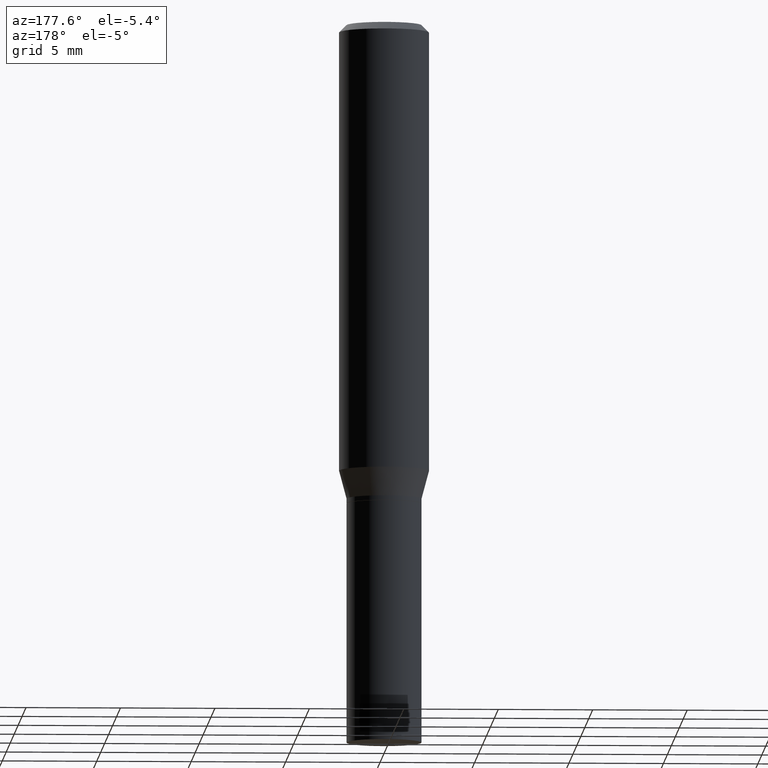
[diagram: clean part render]
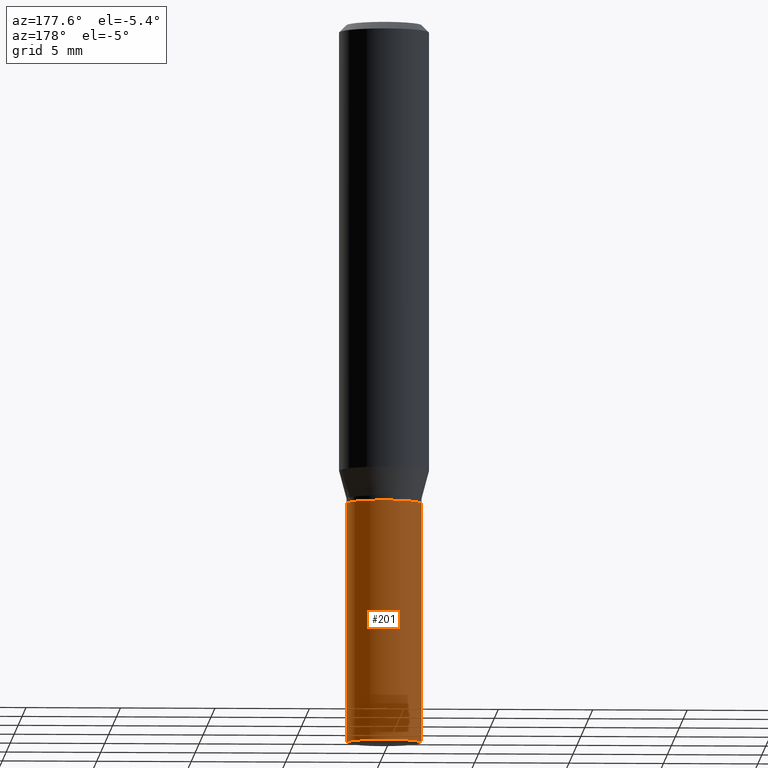
[diagram: same view with one face highlighted and labeled with its STEP entity id]
A machine part, auxiliary view. The second image highlights one B-rep face of the part: STEP entity #201.
In plain terms, the highlighted cylindrical surface (partial cylindrical patch) has radius 1.9837 mm, axis along (-0, 0, 1).
Its self-contained STEP definition (entity closure, byte-faithful):
#2 = LINE ( 'NONE', #140, #456 ) ;
#3 = EDGE_LOOP ( 'NONE', ( #298, #323, #429, #314 ) ) ;
#9 = DIRECTION ( 'NONE',  ( -2.445468806185136597E-29, 3.491481338843145583E-15, 1.000000000000000000 ) ) ;
#12 = VERTEX_POINT ( 'NONE', #116 ) ;
#35 = DIRECTION ( 'NONE',  ( -2.445468806185136877E-29, 3.491481338843145188E-15, 1.000000000000000000 ) ) ;
#44 = VERTEX_POINT ( 'NONE', #297 ) ;
#64 = EDGE_CURVE ( 'NONE', #152, #44, #408, .T. ) ;
#75 = DIRECTION ( 'NONE',  ( -2.445468806185136597E-29, 3.491481338843145583E-15, 1.000000000000000000 ) ) ;
#84 = AXIS2_PLACEMENT_3D ( 'NONE', #381, #285, #151 ) ;
#116 = CARTESIAN_POINT ( 'NONE',  ( -0.07810000000000000275, -3.809417796925293812E-15, -1.000000000000000222 ) ) ;
#140 = CARTESIAN_POINT ( 'NONE',  ( 0.07810000000000000275, -5.453693851272974364E-16, 3.808294061896625703E-30 ) ) ;
#148 = CARTESIAN_POINT ( 'NONE',  ( -0.07810000000000000275, 5.549338766286382647E-16, -3.841688305489081275E-30 ) ) ;
#151 = DIRECTION ( 'NONE',  ( 1.000000000000000000, -6.982962677686266711E-15, 0.000000000000000000 ) ) ;
#152 = VERTEX_POINT ( 'NONE', #195 ) ;
#173 = EDGE_CURVE ( 'NONE', #152, #216, #2, .T. ) ;
#179 = DIRECTION ( 'NONE',  ( 1.000000000000000000, -6.982962677686266711E-15, 4.876176775795935232E-29 ) ) ;
#195 = CARTESIAN_POINT ( 'NONE',  ( 0.07810000000000000275, -5.782591393392015613E-15, -1.500000000000000222 ) ) ;
#201 = ADVANCED_FACE ( 'NONE', ( #252 ), #249, .T. ) ;
#215 = LINE ( 'NONE', #148, #439 ) ;
#216 = VERTEX_POINT ( 'NONE', #292 ) ;
#221 = CIRCLE ( 'NONE', #84, 0.07810000000000000275 ) ;
#222 = CARTESIAN_POINT ( 'NONE',  ( 0.000000000000000000, 0.000000000000000000, 0.000000000000000000 ) ) ;
#238 = EDGE_CURVE ( 'NONE', #216, #12, #221, .T. ) ;
#239 = EDGE_CURVE ( 'NONE', #44, #12, #215, .T. ) ;
#249 = CYLINDRICAL_SURFACE ( 'NONE', #400, 0.07810000000000000275 ) ;
#252 = FACE_OUTER_BOUND ( 'NONE', #3, .T. ) ;
#254 = AXIS2_PLACEMENT_3D ( 'NONE', #261, #9, #263 ) ;
#261 = CARTESIAN_POINT ( 'NONE',  ( 3.668203209277704895E-29, -5.237222008264718177E-15, -1.500000000000000222 ) ) ;
#263 = DIRECTION ( 'NONE',  ( 1.000000000000000000, -6.982962677686266711E-15, 0.000000000000000000 ) ) ;
#285 = DIRECTION ( 'NONE',  ( -2.445468806185136597E-29, 3.491481338843145583E-15, 1.000000000000000000 ) ) ;
#292 = CARTESIAN_POINT ( 'NONE',  ( 0.07810000000000000275, -4.036850723970443413E-15, -1.000000000000000222 ) ) ;
#297 = CARTESIAN_POINT ( 'NONE',  ( -0.07810000000000000275, -3.809417796925293812E-15, -1.500000000000000222 ) ) ;
#298 = ORIENTED_EDGE ( 'NONE', *, *, #64, .T. ) ;
#314 = ORIENTED_EDGE ( 'NONE', *, *, #173, .F. ) ;
#315 = DIRECTION ( 'NONE',  ( -2.445468806185136877E-29, 3.491481338843145188E-15, 1.000000000000000000 ) ) ;
#323 = ORIENTED_EDGE ( 'NONE', *, *, #239, .T. ) ;
#381 = CARTESIAN_POINT ( 'NONE',  ( 2.445468806185136877E-29, -3.491481338843145977E-15, -1.000000000000000222 ) ) ;
#400 = AXIS2_PLACEMENT_3D ( 'NONE', #222, #75, #179 ) ;
#408 = CIRCLE ( 'NONE', #254, 0.07810000000000000275 ) ;
#429 = ORIENTED_EDGE ( 'NONE', *, *, #238, .F. ) ;
#439 = VECTOR ( 'NONE', #35, 39.37007874015748143 ) ;
#456 = VECTOR ( 'NONE', #315, 39.37007874015748143 ) ;